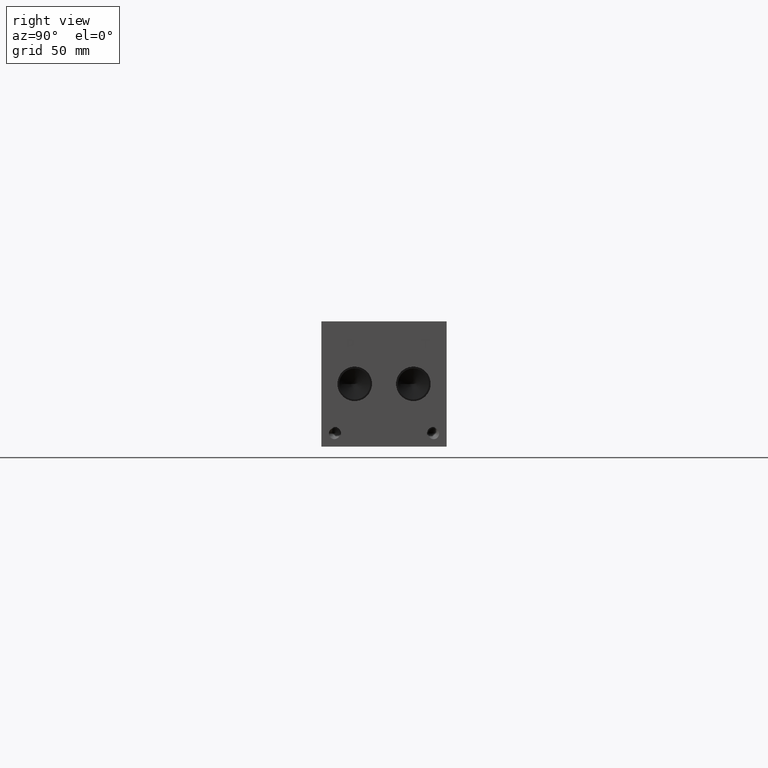
[diagram: clean part render]
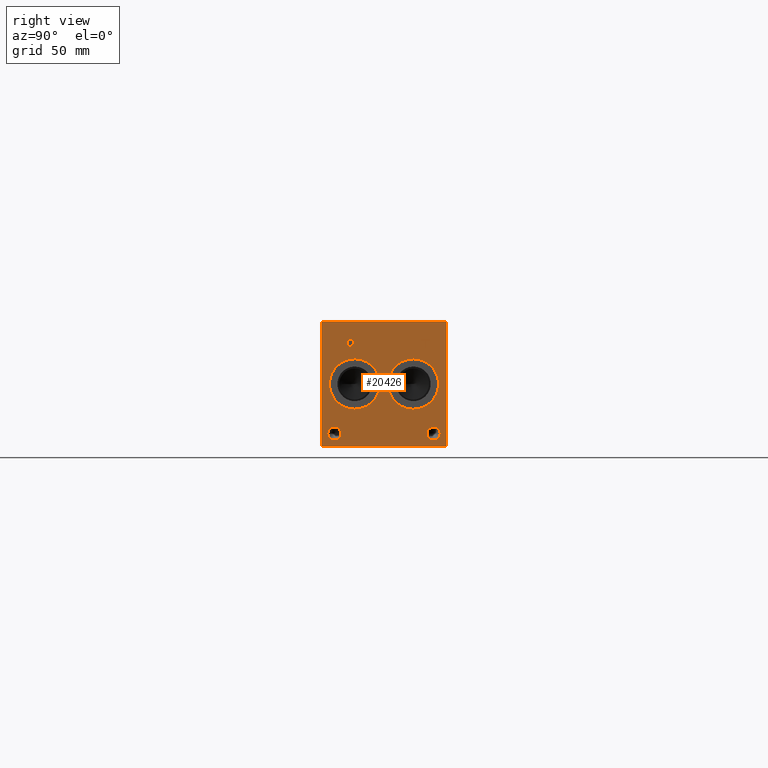
[diagram: same view with one face highlighted and labeled with its STEP entity id]
A machine part, right view. The second image highlights one B-rep face of the part: STEP entity #20426.
In plain terms, the highlighted planar face has unit normal (1, 0, 0).
Its self-contained STEP definition (entity closure, byte-faithful):
#593=CIRCLE('',#21327,15.3416);
#594=CIRCLE('',#21328,15.3416);
#595=CIRCLE('',#21329,15.3416);
#596=CIRCLE('',#21330,15.3416);
#597=CIRCLE('',#21331,4.0005);
#598=CIRCLE('',#21332,4.0005);
#599=CIRCLE('',#21333,4.0005);
#600=CIRCLE('',#21334,4.0005);
#1731=B_SPLINE_CURVE_WITH_KNOTS('',2,(#33834,#33835,#33836,#33837),
 .UNSPECIFIED.,.F.,.F.,(3,1,3),(0.,1.,2.),.UNSPECIFIED.);
#1733=B_SPLINE_CURVE_WITH_KNOTS('',2,(#33855,#33856,#33857,#33858),
 .UNSPECIFIED.,.F.,.F.,(3,1,3),(0.,1.,2.),.UNSPECIFIED.);
#1735=B_SPLINE_CURVE_WITH_KNOTS('',2,(#33904,#33905,#33906,#33907),
 .UNSPECIFIED.,.F.,.F.,(3,1,3),(0.,1.,2.),.UNSPECIFIED.);
#1737=B_SPLINE_CURVE_WITH_KNOTS('',2,(#33922,#33923,#33924,#33925),
 .UNSPECIFIED.,.F.,.F.,(3,1,3),(0.,1.,2.),.UNSPECIFIED.);
#1841=FACE_BOUND('',#3832,.T.);
#1842=FACE_BOUND('',#3833,.T.);
#1843=FACE_BOUND('',#3834,.T.);
#1844=FACE_BOUND('',#3835,.T.);
#1845=FACE_BOUND('',#3836,.T.);
#1846=FACE_BOUND('',#3837,.T.);
#2660=FACE_OUTER_BOUND('',#3831,.T.);
#3831=EDGE_LOOP('',(#16324,#16325,#16326,#16327));
#3832=EDGE_LOOP('',(#16328,#16329));
#3833=EDGE_LOOP('',(#16330,#16331));
#3834=EDGE_LOOP('',(#16332,#16333));
#3835=EDGE_LOOP('',(#16334,#16335));
#3836=EDGE_LOOP('',(#16336,#16337,#16338,#16339,#16340,#16341,#16342,#16343));
#3837=EDGE_LOOP('',(#16344,#16345,#16346,#16347,#16348,#16349,#16350,#16351,
#16352));
#4453=LINE('',#27330,#6155);
#5709=LINE('',#33867,#7411);
#5712=LINE('',#33873,#7414);
#5715=LINE('',#33879,#7417);
#5718=LINE('',#33885,#7420);
#5721=LINE('',#33891,#7423);
#5725=LINE('',#33933,#7427);
#5726=LINE('',#33935,#7428);
#5727=LINE('',#33936,#7429);
#5728=LINE('',#33955,#7430);
#5729=LINE('',#33957,#7431);
#5730=LINE('',#33959,#7432);
#5731=LINE('',#33961,#7433);
#5732=LINE('',#33963,#7434);
#5733=LINE('',#33965,#7435);
#5734=LINE('',#33967,#7436);
#5735=LINE('',#33968,#7437);
#6155=VECTOR('',#22491,10.);
#7411=VECTOR('',#24629,10.);
#7414=VECTOR('',#24634,10.);
#7417=VECTOR('',#24639,10.);
#7420=VECTOR('',#24644,10.);
#7423=VECTOR('',#24649,10.);
#7427=VECTOR('',#24657,10.);
#7428=VECTOR('',#24658,10.);
#7429=VECTOR('',#24659,10.);
#7430=VECTOR('',#24676,10.);
#7431=VECTOR('',#24677,10.);
#7432=VECTOR('',#24678,10.);
#7433=VECTOR('',#24679,10.);
#7434=VECTOR('',#24680,10.);
#7435=VECTOR('',#24681,10.);
#7436=VECTOR('',#24682,10.);
#7437=VECTOR('',#24683,10.);
#7846=VERTEX_POINT('',#27327);
#7847=VERTEX_POINT('',#27329);
#9017=VERTEX_POINT('',#33832);
#9018=VERTEX_POINT('',#33833);
#9021=VERTEX_POINT('',#33854);
#9023=VERTEX_POINT('',#33866);
#9025=VERTEX_POINT('',#33872);
#9027=VERTEX_POINT('',#33878);
#9029=VERTEX_POINT('',#33884);
#9031=VERTEX_POINT('',#33890);
#9033=VERTEX_POINT('',#33903);
#9035=VERTEX_POINT('',#33932);
#9036=VERTEX_POINT('',#33934);
#9037=VERTEX_POINT('',#33937);
#9038=VERTEX_POINT('',#33938);
#9039=VERTEX_POINT('',#33941);
#9040=VERTEX_POINT('',#33942);
#9041=VERTEX_POINT('',#33945);
#9042=VERTEX_POINT('',#33946);
#9043=VERTEX_POINT('',#33949);
#9044=VERTEX_POINT('',#33950);
#9045=VERTEX_POINT('',#33953);
#9046=VERTEX_POINT('',#33954);
#9047=VERTEX_POINT('',#33956);
#9048=VERTEX_POINT('',#33958);
#9049=VERTEX_POINT('',#33960);
#9050=VERTEX_POINT('',#33962);
#9051=VERTEX_POINT('',#33964);
#9052=VERTEX_POINT('',#33966);
#9917=EDGE_CURVE('',#7846,#7847,#4453,.T.);
#11656=EDGE_CURVE('',#9017,#9018,#1731,.T.);
#11660=EDGE_CURVE('',#9021,#9017,#1733,.T.);
#11663=EDGE_CURVE('',#9023,#9021,#5709,.T.);
#11666=EDGE_CURVE('',#9025,#9023,#5712,.T.);
#11669=EDGE_CURVE('',#9027,#9025,#5715,.T.);
#11672=EDGE_CURVE('',#9029,#9027,#5718,.T.);
#11675=EDGE_CURVE('',#9031,#9029,#5721,.T.);
#11678=EDGE_CURVE('',#9033,#9031,#1735,.T.);
#11681=EDGE_CURVE('',#9018,#9033,#1737,.T.);
#11683=EDGE_CURVE('',#7846,#9035,#5725,.T.);
#11684=EDGE_CURVE('',#9035,#9036,#5726,.T.);
#11685=EDGE_CURVE('',#7847,#9036,#5727,.T.);
#11686=EDGE_CURVE('',#9037,#9038,#593,.T.);
#11687=EDGE_CURVE('',#9038,#9037,#594,.T.);
#11688=EDGE_CURVE('',#9039,#9040,#595,.T.);
#11689=EDGE_CURVE('',#9040,#9039,#596,.T.);
#11690=EDGE_CURVE('',#9041,#9042,#597,.T.);
#11691=EDGE_CURVE('',#9042,#9041,#598,.T.);
#11692=EDGE_CURVE('',#9043,#9044,#599,.T.);
#11693=EDGE_CURVE('',#9044,#9043,#600,.T.);
#11694=EDGE_CURVE('',#9045,#9046,#5728,.T.);
#11695=EDGE_CURVE('',#9046,#9047,#5729,.T.);
#11696=EDGE_CURVE('',#9047,#9048,#5730,.T.);
#11697=EDGE_CURVE('',#9048,#9049,#5731,.T.);
#11698=EDGE_CURVE('',#9049,#9050,#5732,.T.);
#11699=EDGE_CURVE('',#9050,#9051,#5733,.T.);
#11700=EDGE_CURVE('',#9051,#9052,#5734,.T.);
#11701=EDGE_CURVE('',#9052,#9045,#5735,.T.);
#16324=ORIENTED_EDGE('',*,*,#11683,.T.);
#16325=ORIENTED_EDGE('',*,*,#11684,.T.);
#16326=ORIENTED_EDGE('',*,*,#11685,.F.);
#16327=ORIENTED_EDGE('',*,*,#9917,.F.);
#16328=ORIENTED_EDGE('',*,*,#11686,.T.);
#16329=ORIENTED_EDGE('',*,*,#11687,.T.);
#16330=ORIENTED_EDGE('',*,*,#11688,.T.);
#16331=ORIENTED_EDGE('',*,*,#11689,.T.);
#16332=ORIENTED_EDGE('',*,*,#11690,.T.);
#16333=ORIENTED_EDGE('',*,*,#11691,.T.);
#16334=ORIENTED_EDGE('',*,*,#11692,.T.);
#16335=ORIENTED_EDGE('',*,*,#11693,.T.);
#16336=ORIENTED_EDGE('',*,*,#11694,.T.);
#16337=ORIENTED_EDGE('',*,*,#11695,.T.);
#16338=ORIENTED_EDGE('',*,*,#11696,.T.);
#16339=ORIENTED_EDGE('',*,*,#11697,.T.);
#16340=ORIENTED_EDGE('',*,*,#11698,.T.);
#16341=ORIENTED_EDGE('',*,*,#11699,.T.);
#16342=ORIENTED_EDGE('',*,*,#11700,.T.);
#16343=ORIENTED_EDGE('',*,*,#11701,.T.);
#16344=ORIENTED_EDGE('',*,*,#11656,.T.);
#16345=ORIENTED_EDGE('',*,*,#11681,.T.);
#16346=ORIENTED_EDGE('',*,*,#11678,.T.);
#16347=ORIENTED_EDGE('',*,*,#11675,.T.);
#16348=ORIENTED_EDGE('',*,*,#11672,.T.);
#16349=ORIENTED_EDGE('',*,*,#11669,.T.);
#16350=ORIENTED_EDGE('',*,*,#11666,.T.);
#16351=ORIENTED_EDGE('',*,*,#11663,.T.);
#16352=ORIENTED_EDGE('',*,*,#11660,.T.);
#18998=PLANE('',#21326);
#20426=ADVANCED_FACE('',(#2660,#1841,#1842,#1843,#1844,#1845,#1846),#18998,
 .T.);
#21326=AXIS2_PLACEMENT_3D('',#33931,#24655,#24656);
#21327=AXIS2_PLACEMENT_3D('',#33939,#24660,#24661);
#21328=AXIS2_PLACEMENT_3D('',#33940,#24662,#24663);
#21329=AXIS2_PLACEMENT_3D('',#33943,#24664,#24665);
#21330=AXIS2_PLACEMENT_3D('',#33944,#24666,#24667);
#21331=AXIS2_PLACEMENT_3D('',#33947,#24668,#24669);
#21332=AXIS2_PLACEMENT_3D('',#33948,#24670,#24671);
#21333=AXIS2_PLACEMENT_3D('',#33951,#24672,#24673);
#21334=AXIS2_PLACEMENT_3D('',#33952,#24674,#24675);
#22491=DIRECTION('',(0.,0.,1.));
#24629=DIRECTION('',(0.,1.,0.));
#24634=DIRECTION('',(0.,0.,1.));
#24639=DIRECTION('',(0.,-1.,0.));
#24644=DIRECTION('',(0.,0.,-1.));
#24649=DIRECTION('',(0.,-1.,0.));
#24655=DIRECTION('center_axis',(1.,0.,0.));
#24656=DIRECTION('ref_axis',(0.,1.,0.));
#24657=DIRECTION('',(0.,1.,0.));
#24658=DIRECTION('',(0.,0.,1.));
#24659=DIRECTION('',(0.,1.,0.));
#24660=DIRECTION('center_axis',(-1.,0.,0.));
#24661=DIRECTION('ref_axis',(0.,0.,-1.));
#24662=DIRECTION('center_axis',(-1.,0.,0.));
#24663=DIRECTION('ref_axis',(0.,0.,-1.));
#24664=DIRECTION('center_axis',(-1.,0.,0.));
#24665=DIRECTION('ref_axis',(0.,0.,-1.));
#24666=DIRECTION('center_axis',(-1.,0.,0.));
#24667=DIRECTION('ref_axis',(0.,0.,-1.));
#24668=DIRECTION('center_axis',(-1.,0.,0.));
#24669=DIRECTION('ref_axis',(0.,1.,0.));
#24670=DIRECTION('center_axis',(-1.,0.,0.));
#24671=DIRECTION('ref_axis',(0.,1.,0.));
#24672=DIRECTION('center_axis',(-1.,0.,0.));
#24673=DIRECTION('ref_axis',(0.,1.,0.));
#24674=DIRECTION('center_axis',(-1.,0.,0.));
#24675=DIRECTION('ref_axis',(0.,1.,0.));
#24676=DIRECTION('',(0.,-1.,0.));
#24677=DIRECTION('',(0.,0.,1.));
#24678=DIRECTION('',(0.,-1.,0.));
#24679=DIRECTION('',(0.,0.,1.));
#24680=DIRECTION('',(0.,1.,0.));
#24681=DIRECTION('',(0.,0.,-1.));
#24682=DIRECTION('',(0.,-1.,0.));
#24683=DIRECTION('',(0.,0.,-1.));
#27327=CARTESIAN_POINT('',(431.8,0.,0.));
#27329=CARTESIAN_POINT('',(431.8,0.,76.2));
#27330=CARTESIAN_POINT('',(431.8,0.,0.));
#33832=CARTESIAN_POINT('',(431.8,19.0643672023594,64.6277681439707));
#33833=CARTESIAN_POINT('',(431.8,19.820809654532,63.1097373726039));
#33834=CARTESIAN_POINT('Ctrl Pts',(431.8,19.0643672023594,64.6277681439707));
#33835=CARTESIAN_POINT('Ctrl Pts',(431.8,19.4194320268486,64.3859123939564));
#33836=CARTESIAN_POINT('Ctrl Pts',(431.8,19.820809654532,63.6397616758269));
#33837=CARTESIAN_POINT('Ctrl Pts',(431.8,19.820809654532,63.1097373726039));
#33854=CARTESIAN_POINT('',(431.8,17.4022521543883,65.0239999046326));
#33855=CARTESIAN_POINT('Ctrl Pts',(431.8,17.4022521543883,65.0239999046326));
#33856=CARTESIAN_POINT('Ctrl Pts',(431.8,17.9682975267624,65.0239999046326));
#33857=CARTESIAN_POINT('Ctrl Pts',(431.8,18.760761048086,64.8387486918556));
#33858=CARTESIAN_POINT('Ctrl Pts',(431.8,19.0643672023594,64.6277681439707));
#33866=CARTESIAN_POINT('',(431.8,15.8070333776978,65.0239999046326));
#33867=CARTESIAN_POINT('',(431.8,7.9035166888489,65.0239999046326));
#33872=CARTESIAN_POINT('',(431.8,15.8070333776978,58.674));
#33873=CARTESIAN_POINT('',(431.8,15.8070333776978,29.337));
#33878=CARTESIAN_POINT('',(431.8,16.6509555692373,58.674));
#33879=CARTESIAN_POINT('',(431.8,8.32547778461864,58.674));
#33884=CARTESIAN_POINT('',(431.8,16.6509555692373,61.0410988299279));
#33885=CARTESIAN_POINT('',(431.8,16.6509555692373,30.5205494149639));
#33890=CARTESIAN_POINT('',(431.8,17.3662310852372,61.0410988299279));
#33891=CARTESIAN_POINT('',(431.8,8.68311554261861,61.0410988299279));
#33903=CARTESIAN_POINT('',(431.8,19.2650560162011,61.6997698086904));
#33904=CARTESIAN_POINT('Ctrl Pts',(431.8,19.2650560162011,61.6997698086904));
#33905=CARTESIAN_POINT('Ctrl Pts',(431.8,18.9357205268198,61.3755801863307));
#33906=CARTESIAN_POINT('Ctrl Pts',(431.8,18.0454855320861,61.0410988299279));
#33907=CARTESIAN_POINT('Ctrl Pts',(431.8,17.3662310852372,61.0410988299279));
#33922=CARTESIAN_POINT('Ctrl Pts',(431.8,19.820809654532,63.1097373726039));
#33923=CARTESIAN_POINT('Ctrl Pts',(431.8,19.820809654532,62.6980680108774));
#33924=CARTESIAN_POINT('Ctrl Pts',(431.8,19.5274952343018,61.9570631597695));
#33925=CARTESIAN_POINT('Ctrl Pts',(431.8,19.2650560162011,61.6997698086904));
#33931=CARTESIAN_POINT('Origin',(431.8,0.,0.));
#33932=CARTESIAN_POINT('',(431.8,76.2,0.));
#33933=CARTESIAN_POINT('',(431.8,0.,0.));
#33934=CARTESIAN_POINT('',(431.8,76.2,76.2));
#33935=CARTESIAN_POINT('',(431.8,76.2,0.));
#33936=CARTESIAN_POINT('',(431.8,0.,76.2));
#33937=CARTESIAN_POINT('',(431.8,55.9562,22.7584));
#33938=CARTESIAN_POINT('',(431.8,55.9562,53.4416));
#33939=CARTESIAN_POINT('Origin',(431.8,55.9562,38.1));
#33940=CARTESIAN_POINT('Origin',(431.8,55.9562,38.1));
#33941=CARTESIAN_POINT('',(431.8,20.2438,22.7584));
#33942=CARTESIAN_POINT('',(431.8,20.2438,53.4416));
#33943=CARTESIAN_POINT('Origin',(431.8,20.2438,38.1));
#33944=CARTESIAN_POINT('Origin',(431.8,20.2438,38.1));
#33945=CARTESIAN_POINT('',(431.8,11.9253,7.9248));
#33946=CARTESIAN_POINT('',(431.8,3.9243,7.9248));
#33947=CARTESIAN_POINT('Origin',(431.8,7.9248,7.9248));
#33948=CARTESIAN_POINT('Origin',(431.8,7.9248,7.9248));
#33949=CARTESIAN_POINT('',(431.8,72.2757,7.9248));
#33950=CARTESIAN_POINT('',(431.8,64.2747,7.9248));
#33951=CARTESIAN_POINT('Origin',(431.8,68.2752,7.9248));
#33952=CARTESIAN_POINT('Origin',(431.8,68.2752,7.9248));
#33953=CARTESIAN_POINT('',(431.8,63.751365271453,58.674));
#33954=CARTESIAN_POINT('',(431.8,62.9074430799135,58.674));
#33955=CARTESIAN_POINT('',(431.8,31.8756826357265,58.674));
#33956=CARTESIAN_POINT('',(431.8,62.9074430799135,64.2727033194816));
#33957=CARTESIAN_POINT('',(431.8,62.9074430799135,29.337));
#33958=CARTESIAN_POINT('',(431.8,60.7770541329784,64.2727033194816));
#33959=CARTESIAN_POINT('',(431.8,31.4537215399567,64.2727033194816));
#33960=CARTESIAN_POINT('',(431.8,60.7770541329784,65.0239999046326));
#33961=CARTESIAN_POINT('',(431.8,60.7770541329784,32.1363516597408));
#33962=CARTESIAN_POINT('',(431.8,65.8817542183881,65.0239999046326));
#33963=CARTESIAN_POINT('',(431.8,30.3885270664892,65.0239999046326));
#33964=CARTESIAN_POINT('',(431.8,65.8817542183881,64.2727033194816));
#33965=CARTESIAN_POINT('',(431.8,65.8817542183881,32.5119999523163));
#33966=CARTESIAN_POINT('',(431.8,63.751365271453,64.2727033194816));
#33967=CARTESIAN_POINT('',(431.8,32.940877109194,64.2727033194816));
#33968=CARTESIAN_POINT('',(431.8,63.751365271453,32.1363516597408));